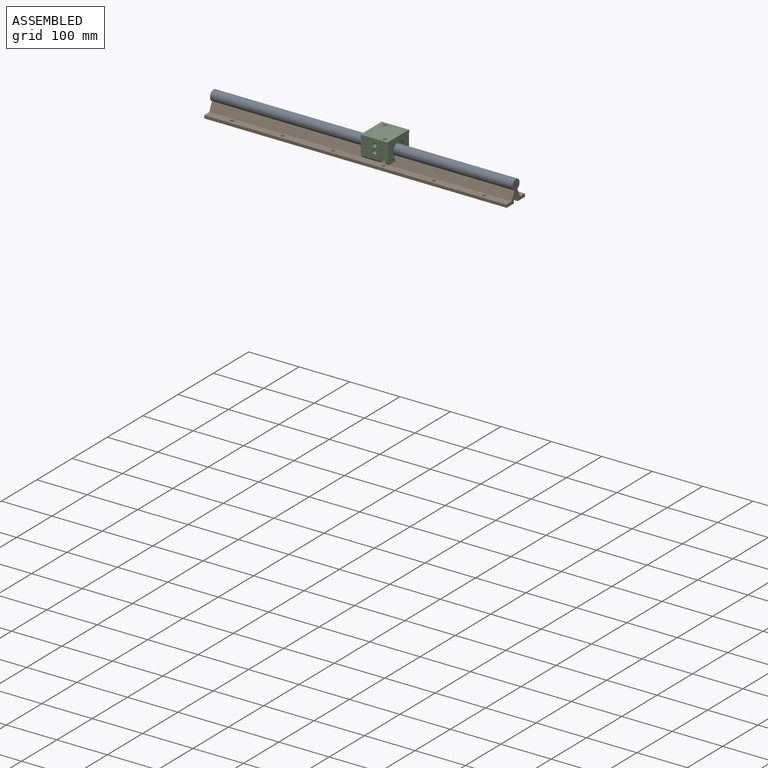
[diagram: assembled view]
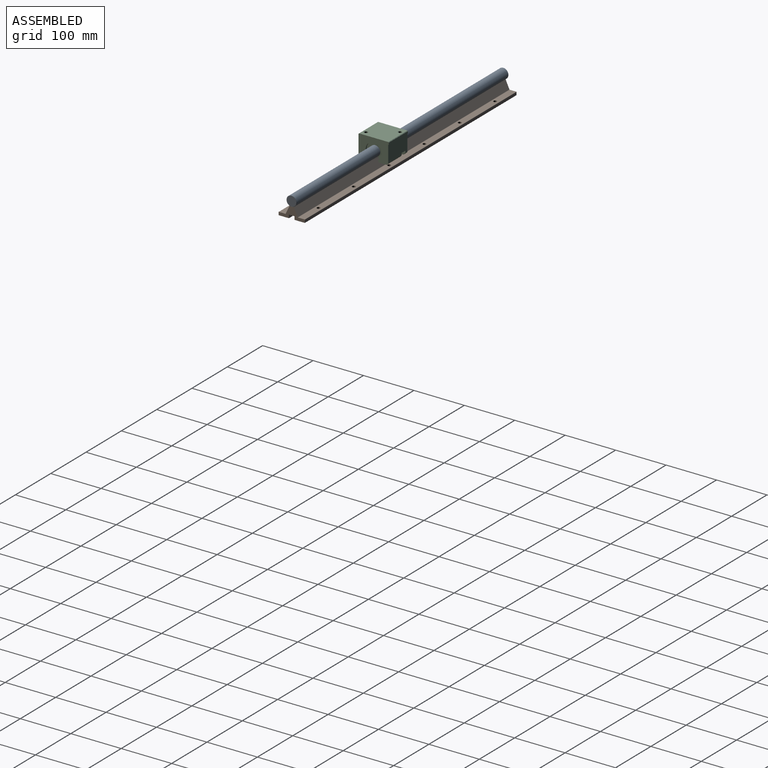
[diagram: assembled view, second angle]
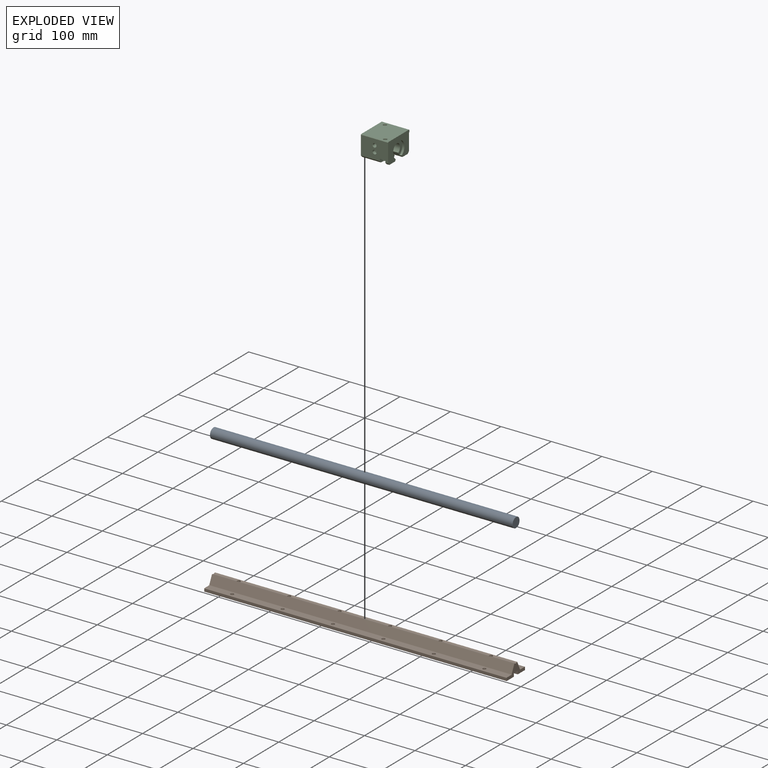
[diagram: exploded view]
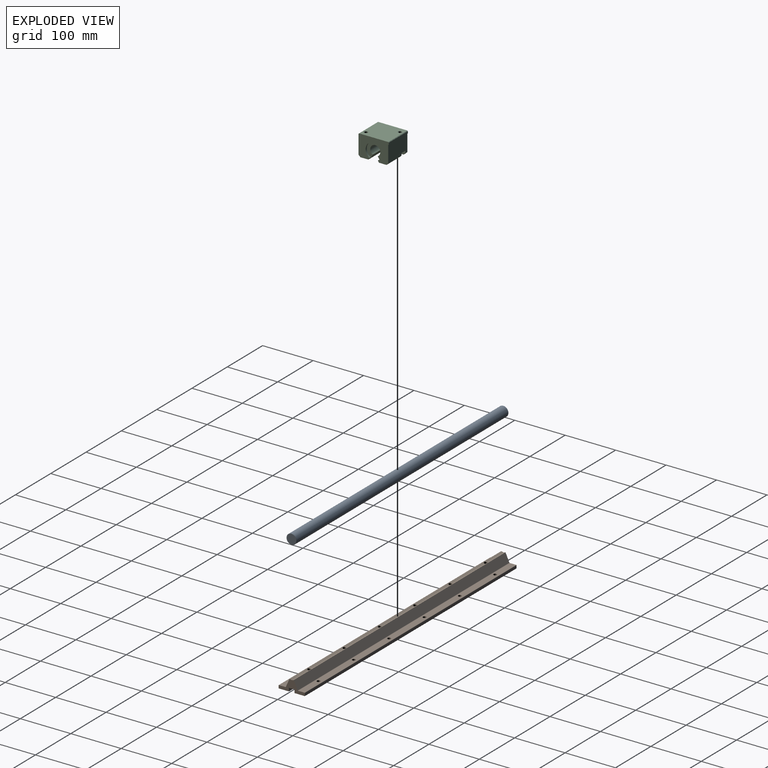
[diagram: exploded view, second angle]
ASSEMBLY  parts=3 mates=2
PART A: 29 faces, bbox 600x20x20 mm
  f0: cone r=2.46mm half-angle=59deg, axis (0,0,-1), area 22.2mm2, adj f18
  f1: cylinder r=3.5mm len=7mm, axis (0,0,-1), area 17.9mm2, adj f5,f23
  f2: plane 19.6x19.6mm, normal (1,0,0), area 301.7mm2, adj f3
  f3: cone r=10mm half-angle=45deg, axis (-1,0,0), area 17.6mm2, adj f2,f5
  f4: cone r=9.8mm half-angle=45deg, axis (1,0,0), area 17.6mm2, adj f5,f6
  f5: cylinder r=10mm len=599.6mm, axis (-1,0,0), area 37465.8mm2, adj f1,f3,f4,f7,f12,f13,f17,f20
  f6: plane 19.6x19.6mm, normal (-1,0,0), area 301.7mm2, adj f4
  f7: cylinder r=3.5mm len=7mm, axis (0,0,-1), area 17.9mm2, adj f5,f8
  f8: plane 7x7mm, normal (0,0,-1), area 19.5mm2, adj f7,f28
  f9: cone r=2.46mm half-angle=59deg, axis (0,0,-1), area 22.2mm2, adj f10
  f10: cylinder r=2.46mm len=10.87mm, axis (0,0,-1), area 167.9mm2, adj f9,f11
  f11: plane 7x7mm, normal (0,0,-1), area 19.5mm2, adj f10,f12
  f12: cylinder r=3.5mm len=7mm, axis (0,0,-1), area 17.9mm2, adj f5,f11
  f13: cylinder r=3.5mm len=7mm, axis (0,0,-1), area 17.9mm2, adj f5,f24
  f14: cone r=2.46mm half-angle=59deg, axis (0,0,-1), area 22.2mm2, adj f15
  f15: cylinder r=2.46mm len=10.87mm, axis (0,0,-1), area 167.9mm2, adj f14,f16
  f16: plane 7x7mm, normal (0,0,-1), area 19.5mm2, adj f15,f17
  f17: cylinder r=3.5mm len=7mm, axis (0,0,-1), area 17.9mm2, adj f5,f16
  f18: cylinder r=2.46mm len=10.87mm, axis (0,0,-1), area 167.9mm2, adj f0,f19
  f19: plane 7x7mm, normal (0,0,-1), area 19.5mm2, adj f18,f20
  f20: cylinder r=3.5mm len=7mm, axis (0,0,-1), area 17.9mm2, adj f5,f19
  f21: cone r=2.46mm half-angle=59deg, axis (0,0,-1), area 22.2mm2, adj f22
  f22: cylinder r=2.46mm len=10.87mm, axis (0,0,-1), area 167.9mm2, adj f21,f23
  f23: plane 7x7mm, normal (0,0,-1), area 19.5mm2, adj f1,f22
  f24: plane 7x7mm, normal (0,0,-1), area 19.5mm2, adj f13,f25
  f25: cylinder r=2.46mm len=10.87mm, axis (0,0,-1), area 167.9mm2, adj f24,f26
  f26: cone r=2.46mm half-angle=59deg, axis (0,0,-1), area 22.2mm2, adj f25
  f27: cone r=2.46mm half-angle=59deg, axis (0,0,-1), area 22.2mm2, adj f28
  f28: cylinder r=2.46mm len=10.87mm, axis (0,0,-1), area 167.9mm2, adj f8,f27
PART B: 37 faces, bbox 599.5x52x22.9 mm
  f0: plane 599.5x20.5mm, normal (0,0,-1), area 12084.5mm2, adj f3,f9,f10,f20,f24,f32,f33,f34
  f1: cylinder r=3.3mm len=16.14mm, axis (0,0,1), area 326.7mm2, adj f8,f15,f16
  f2: cylinder r=3.3mm len=6.6mm, axis (0,0,1), area 124.4mm2, adj f6,f19
  f3: plane 52x22.9mm, normal (-1,0,0), area 508.5mm2, adj f0,f4,f5,f6,f7,f8,f9,f10
  f4: cylinder r=0.5mm len=599.5mm, axis (1,0,0), area 470.8mm2, adj f3,f5,f19,f20
  f5: plane 599.5x5.5mm, normal (0,-1,0), area 3297.2mm2, adj f3,f4,f6,f20
  f6: plane 599.5x20.5mm, normal (0,0,-1), area 12084.5mm2, adj f2,f3,f5,f7,f20,f21,f22,f25
  f7: plane 599.5x6.5mm, normal (0,1,0), area 3896.8mm2, adj f3,f6,f8,f20
  f8: plane 599.5x11mm, normal (0,0,-1), area 6389.2mm2, adj f1,f3,f7,f9,f20,f23,f28,f29
  f9: plane 599.5x6.5mm, normal (0,-1,0), area 3896.8mm2, adj f0,f3,f8,f20
  f10: plane 599.5x5.5mm, normal (0,1,0), area 3297.2mm2, adj f0,f3,f11,f20
  f11: cylinder r=0.5mm len=599.5mm, axis (1,0,0), area 470.8mm2, adj f3,f10,f12,f20
  f12: plane 599.5x13.15mm, normal (0,0,1), area 7678.2mm2, adj f3,f11,f13,f20,f24,f32,f33,f34
  f13: cylinder r=0.5mm len=599.5mm, axis (1,0,0), area 340.1mm2, adj f3,f12,f14,f20
  f14: plane 599.5x16.61mm, normal (0,0.91,0.42), area 10989.1mm2, adj f3,f13,f15,f20
  f15: plane 599.5x4.15mm, normal (0,-0.3,0.95), area 2501mm2, adj f1,f3,f14,f16,f20,f23,f28,f29
  f16: plane 599.5x4.15mm, normal (0,0.3,0.95), area 2501mm2, adj f1,f3,f15,f17,f20,f23,f28,f29
  f17: plane 599.5x16.61mm, normal (0,-0.91,0.42), area 10989.1mm2, adj f3,f16,f18,f20
  f18: cylinder r=0.5mm len=599.5mm, axis (1,0,0), area 340.1mm2, adj f3,f17,f19,f20
  f19: plane 599.5x13.15mm, normal (0,0,1), area 7678.2mm2, adj f2,f3,f4,f18,f20,f21,f22,f25
  f20: plane 52x22.9mm, normal (1,0,0), area 508.5mm2, adj f0,f4,f5,f6,f7,f8,f9,f10
  f21: cylinder r=3.3mm len=6.6mm, axis (0,0,1), area 124.4mm2, adj f6,f19
  f22: cylinder r=3.3mm len=6.6mm, axis (0,0,1), area 124.4mm2, adj f6,f19
  f23: cylinder r=3.3mm len=16.14mm, axis (0,0,1), area 326.7mm2, adj f8,f15,f16
  f24: cylinder r=3.3mm len=6.6mm, axis (0,0,1), area 124.4mm2, adj f0,f12
  f25: cylinder r=3.3mm len=6.6mm, axis (0,0,1), area 124.4mm2, adj f6,f19
  f26: cylinder r=3.3mm len=6.6mm, axis (0,0,1), area 124.4mm2, adj f6,f19
  f27: cylinder r=3.3mm len=6.6mm, axis (0,0,1), area 124.4mm2, adj f6,f19
  f28: cylinder r=3.3mm len=16.14mm, axis (0,0,1), area 326.7mm2, adj f8,f15,f16
  f29: cylinder r=3.3mm len=16.14mm, axis (0,0,1), area 326.7mm2, adj f8,f15,f16
  f30: cylinder r=3.3mm len=16.14mm, axis (0,0,1), area 326.7mm2, adj f8,f15,f16
  f31: cylinder r=3.3mm len=16.14mm, axis (0,0,1), area 326.7mm2, adj f8,f15,f16
  f32: cylinder r=3.3mm len=6.6mm, axis (0,0,1), area 124.4mm2, adj f0,f12
  f33: cylinder r=3.3mm len=6.6mm, axis (0,0,1), area 124.4mm2, adj f0,f12
  f34: cylinder r=3.3mm len=6.6mm, axis (0,0,1), area 124.4mm2, adj f0,f12
  f35: cylinder r=3.3mm len=6.6mm, axis (0,0,1), area 124.4mm2, adj f0,f12
  f36: cylinder r=3.3mm len=6.6mm, axis (0,0,1), area 124.4mm2, adj f0,f12
PART C: 57 faces, bbox 60x54x42 mm
  f0: cylinder r=2.15mm len=8.53mm, axis (1,0,0), area 76.8mm2, adj f1,f38
  f1: plane 6.92x6.92mm, normal (1,0,0), area 23.1mm2, adj f0,f2
  f2: cylinder r=3.46mm len=13.46mm, axis (1,0,0), area 292.5mm2, adj f1,f3
  f3: cone r=4mm half-angle=45deg, axis (1,0,0), area 17.9mm2, adj f2,f45
  f4: cylinder r=3.4mm len=16mm, axis (0,0,1), area 341.8mm2, adj f5,f12
  f5: plane 6.8x6.8mm, normal (0,0,-1), area 1.6mm2, adj f4,f6
  f6: cylinder r=3.32mm len=17.32mm, axis (0,0,1), area 361.8mm2, adj f5,f7
  f7: cone r=4mm half-angle=45deg, axis (0,0,1), area 22mm2, adj f6,f50
  f8: cylinder r=3.4mm len=16mm, axis (0,0,1), area 341.8mm2, adj f9,f56
  f9: plane 6.8x6.8mm, normal (0,0,-1), area 1.6mm2, adj f8,f10
  f10: cylinder r=3.32mm len=17.32mm, axis (0,0,1), area 361.8mm2, adj f9,f11
  f11: cone r=4mm half-angle=45deg, axis (0,0,1), area 22mm2, adj f10,f50
  f12: plane 12x11mm, normal (0,0,-1), area 82.7mm2, adj f4,f16,f17,f18,f27
  f13: plane 8x7.5mm, normal (0,1,0), area 53.9mm2, adj f14,f45,f46,f48,f56
  f14: cylinder r=5.5mm len=11mm, axis (0,0,1), area 138.2mm2, adj f13,f15,f48,f56
  f15: plane 8x7.5mm, normal (0,-1,0), area 53.9mm2, adj f14,f45,f47,f48,f56
  f16: plane 8x6.5mm, normal (0,-1,0), area 45.9mm2, adj f12,f17,f25,f27,f49
  f17: cylinder r=5.5mm len=11mm, axis (0,0,1), area 138.2mm2, adj f12,f16,f18,f25
  f18: plane 8x6.5mm, normal (0,1,0), area 45.9mm2, adj f12,f17,f25,f26,f27
  f19: cylinder r=16mm len=32mm, axis (0,-1,0), area 223mm2, adj f20,f23,f24,f52
  f20: plane 33.5x30.96mm, normal (0,-1,0), area 63.4mm2, adj f19,f21,f23,f24
  f21: cylinder r=16.75mm len=33.5mm, axis (0,-1,0), area 168.7mm2, adj f20,f23,f24,f31
  f22: cylinder r=16.75mm len=33.5mm, axis (0,-1,0), area 168.7mm2, adj f23,f24,f32,f55
  f23: plane 54x3.44mm, normal (0.85,0,-0.53), area 216.4mm2, adj f19,f20,f21,f22,f25,f31,f32,f39
  f24: plane 54x3.44mm, normal (-0.87,0,-0.5), area 211.9mm2, adj f19,f20,f21,f22,f31,f32,f39,f48
  f25: plane 54x14.85mm, normal (0,0,-1), area 721.3mm2, adj f16,f17,f18,f23,f26,f49,f52,f53
  f26: plane 5.5x3.5mm, normal (-0.71,0,-0.71), area 27.2mm2, adj f18,f25,f27,f53
  f27: plane 54x33.5mm, normal (-1,0,0), area 1759.5mm2, adj f12,f16,f18,f26,f28,f49,f52,f53
  f28: plane 54x1mm, normal (0,0,-1), area 54mm2, adj f27,f30,f52,f53
  f29: plane 54x1mm, normal (0.71,0,0.71), area 76.4mm2, adj f45,f50,f52,f53
  f30: plane 54x4mm, normal (-1,0,0), area 216mm2, adj f28,f51,f52,f53
  f31: plane 33.5x30.96mm, normal (0,1,0), area 63.4mm2, adj f21,f23,f24,f39
  f32: plane 33.5x30.96mm, normal (0,-1,0), area 63.4mm2, adj f22,f23,f24,f39
  f33: cylinder r=4mm len=8mm, axis (-1,0,0), area 163.4mm2, adj f34,f45
  f34: plane 8x8mm, normal (1,0,0), area 30.6mm2, adj f33,f35
  f35: cone r=2.07mm half-angle=45deg, axis (1,0,0), area 8.8mm2, adj f34,f36
  f36: cylinder r=2.07mm len=7.07mm, axis (-1,0,0), area 91.8mm2, adj f35,f37
  f37: cylinder r=16mm len=4.14mm, axis (0,-1,0), area 13.5mm2, adj f36
  f38: cylinder r=16mm len=5.14mm, axis (0,-1,0), area 22.7mm2, adj f0
  f39: cylinder r=16mm len=45mm, axis (0,-1,0), area 66.9mm2, adj f23,f24,f31,f32,f40,f42,f43,f44
  f40: plane 45x5.2mm, normal (0.87,0,-0.5), area 270mm2, adj f39,f41,f43,f44
  f41: cylinder r=10mm len=45mm, axis (0,-1,0), area 2345.8mm2, adj f40,f42,f43,f44
  f42: plane 45x5.2mm, normal (-0.87,0,-0.5), area 270mm2, adj f39,f41,f43,f44
  f43: plane 32x29.8mm, normal (0,1,0), area 407mm2, adj f39,f40,f41,f42
  f44: plane 32x29.8mm, normal (0,-1,0), area 407mm2, adj f39,f40,f41,f42
  f45: plane 54x37.5mm, normal (1,0,0), area 1875mm2, adj f3,f13,f15,f29,f33,f46,f47,f52
  f46: plane 37.5x3.5mm, normal (0.71,0,-0.71), area 185.6mm2, adj f13,f45,f48,f53
  f47: plane 5.5x3.5mm, normal (0.71,0,-0.71), area 27.2mm2, adj f15,f45,f48,f52
  f48: plane 54x16.01mm, normal (0,0,-1), area 773.1mm2, adj f13,f14,f15,f24,f46,f47,f52,f53
  f49: plane 37.5x3.5mm, normal (-0.71,0,-0.71), area 185.6mm2, adj f16,f25,f27,f52
  f50: plane 58x54mm, normal (0,0,1), area 3031.5mm2, adj f7,f11,f29,f51,f52,f53
  f51: plane 54x1mm, normal (-0.71,0,0.71), area 76.4mm2, adj f30,f50,f52,f53
  f52: plane 60x42mm, normal (0,1,0), area 1628mm2, adj f19,f23,f24,f25,f27,f28,f29,f30
  f53: plane 60x42mm, normal (0,-1,0), area 1628mm2, adj f23,f24,f25,f26,f27,f28,f29,f30
  f54: cylinder r=16mm len=32mm, axis (0,-1,0), area 223mm2, adj f23,f24,f53,f55
  f55: plane 33.5x30.96mm, normal (0,1,0), area 63.4mm2, adj f22,f23,f24,f54
  f56: plane 13x11mm, normal (0,0,-1), area 93.7mm2, adj f8,f13,f14,f15,f45
PLACE A t=(-19.44,14.09,18.77)mm
PLACE B t=(-19.44,14.09,-13.31)mm
PLACE C rot(axis=(0,0,-1),90deg) t=(347.97,14.09,1.77)mm
MATE cylindrical B.f31 <-> A.f0  axis (0,0,1) through (530.56,14.09,1.3)mm
MATE slider C.f41 <-> A.f3  axis (-1,0,0) through (298.47,14.09,18.77)mm
